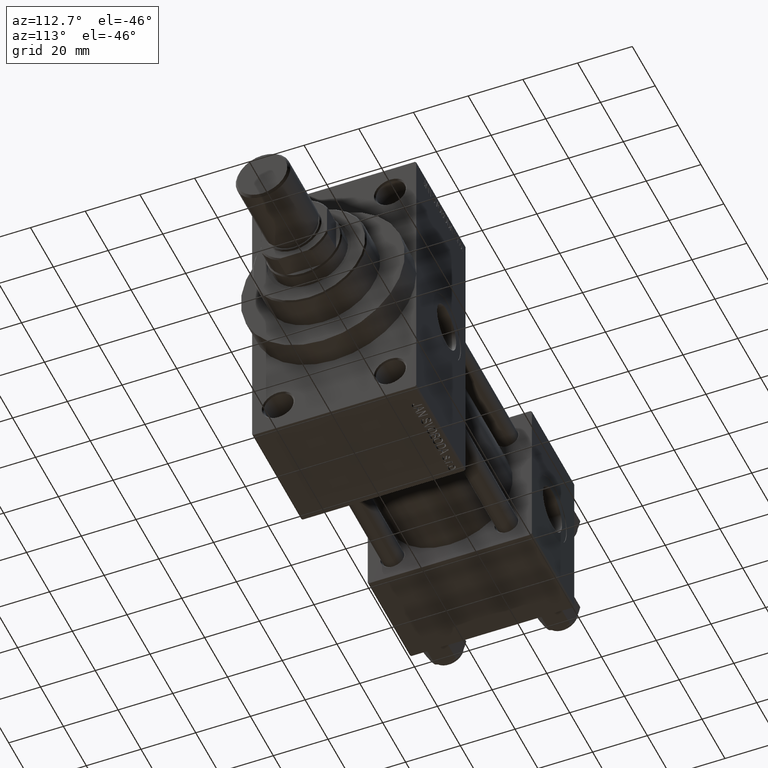
[diagram: clean part render]
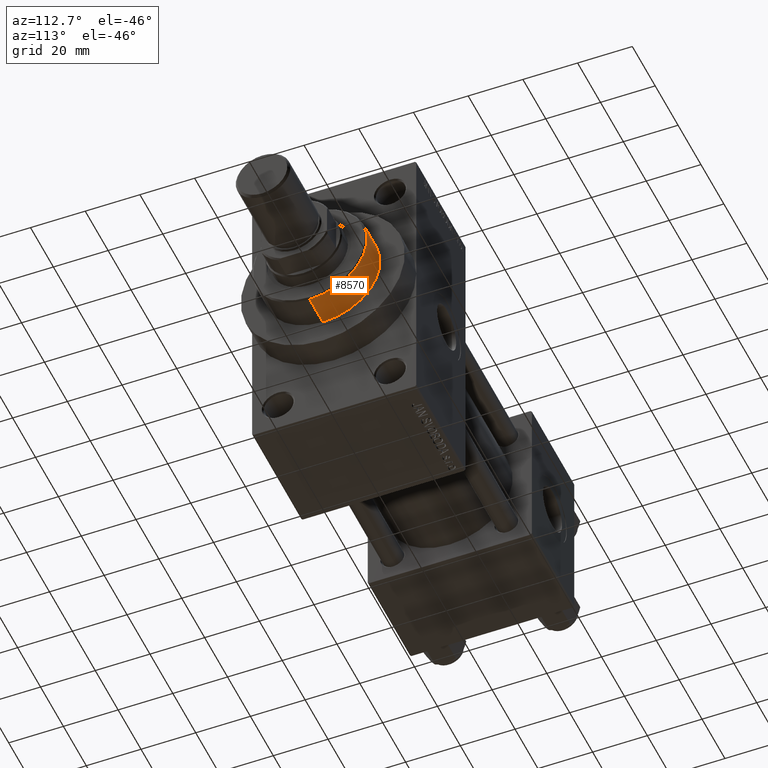
[diagram: same view with one face highlighted and labeled with its STEP entity id]
A machine part, auxiliary view. The second image highlights one B-rep face of the part: STEP entity #8570.
In plain terms, the highlighted cylindrical surface (partial cylindrical patch) has radius 21 mm, axis along (-1, 0, 0).
Its self-contained STEP definition (entity closure, byte-faithful):
#107 = VECTOR ( 'NONE', #15954, 1000.000000000000000 ) ;
#1240 = CARTESIAN_POINT ( 'NONE',  ( -21.00000000000000000, 0.000000000000000000, 55.26000000000000512 ) ) ;
#1531 = CARTESIAN_POINT ( 'NONE',  ( 21.00000000000000000, 2.571758278209441661E-15, 43.25999999999999801 ) ) ;
#2050 = VERTEX_POINT ( 'NONE', #3959 ) ;
#2889 = ORIENTED_EDGE ( 'NONE', *, *, #39249, .T. ) ;
#3959 = CARTESIAN_POINT ( 'NONE',  ( -21.00000000000000000, 0.000000000000000000, 43.25999999999999801 ) ) ;
#5582 = CARTESIAN_POINT ( 'NONE',  ( 21.00000000000000000, 2.571758278209441661E-15, 54.75999999999999091 ) ) ;
#8570 = ADVANCED_FACE ( 'NONE', ( #8849 ), #41181, .T. ) ;
#8849 = FACE_OUTER_BOUND ( 'NONE', #27400, .T. ) ;
#9719 = DIRECTION ( 'NONE',  ( 0.000000000000000000, 0.000000000000000000, -1.000000000000000000 ) ) ;
#10183 = DIRECTION ( 'NONE',  ( 1.000000000000000000, 0.000000000000000000, 0.000000000000000000 ) ) ;
#10817 = ORIENTED_EDGE ( 'NONE', *, *, #21888, .T. ) ;
#15954 = DIRECTION ( 'NONE',  ( -0.000000000000000000, -0.000000000000000000, -1.000000000000000000 ) ) ;
#16540 = CARTESIAN_POINT ( 'NONE',  ( 0.000000000000000000, 0.000000000000000000, 43.25999999999999801 ) ) ;
#19463 = CARTESIAN_POINT ( 'NONE',  ( 0.000000000000000000, 0.000000000000000000, 55.26000000000000512 ) ) ;
#21888 = EDGE_CURVE ( 'NONE', #2050, #33977, #22938, .T. ) ;
#21938 = ORIENTED_EDGE ( 'NONE', *, *, #31263, .T. ) ;
#22938 = CIRCLE ( 'NONE', #31415, 21.00000000000000000 ) ;
#23124 = ORIENTED_EDGE ( 'NONE', *, *, #41132, .F. ) ;
#24510 = DIRECTION ( 'NONE',  ( 1.000000000000000000, 0.000000000000000000, 0.000000000000000000 ) ) ;
#27400 = EDGE_LOOP ( 'NONE', ( #23124, #21938, #2889, #10817 ) ) ;
#30813 = CIRCLE ( 'NONE', #31569, 21.00000000000000000 ) ;
#30936 = CARTESIAN_POINT ( 'NONE',  ( 21.00000000000000000, 2.571758278209441661E-15, 55.26000000000000512 ) ) ;
#31036 = DIRECTION ( 'NONE',  ( -1.000000000000000000, 0.000000000000000000, 0.000000000000000000 ) ) ;
#31263 = EDGE_CURVE ( 'NONE', #38304, #43821, #30813, .T. ) ;
#31415 = AXIS2_PLACEMENT_3D ( 'NONE', #16540, #42121, #24510 ) ;
#31569 = AXIS2_PLACEMENT_3D ( 'NONE', #42763, #9719, #10183 ) ;
#31771 = VECTOR ( 'NONE', #45651, 1000.000000000000000 ) ;
#33977 = VERTEX_POINT ( 'NONE', #1531 ) ;
#34303 = LINE ( 'NONE', #1240, #107 ) ;
#35721 = CARTESIAN_POINT ( 'NONE',  ( -21.00000000000000000, 0.000000000000000000, 54.75999999999999091 ) ) ;
#38278 = DIRECTION ( 'NONE',  ( -0.000000000000000000, -0.000000000000000000, -1.000000000000000000 ) ) ;
#38304 = VERTEX_POINT ( 'NONE', #5582 ) ;
#39249 = EDGE_CURVE ( 'NONE', #43821, #2050, #34303, .T. ) ;
#41132 = EDGE_CURVE ( 'NONE', #38304, #33977, #46362, .T. ) ;
#41181 = CYLINDRICAL_SURFACE ( 'NONE', #42621, 21.00000000000000000 ) ;
#42121 = DIRECTION ( 'NONE',  ( 0.000000000000000000, 0.000000000000000000, 1.000000000000000000 ) ) ;
#42621 = AXIS2_PLACEMENT_3D ( 'NONE', #19463, #38278, #31036 ) ;
#42763 = CARTESIAN_POINT ( 'NONE',  ( 0.000000000000000000, 0.000000000000000000, 54.75999999999999091 ) ) ;
#43821 = VERTEX_POINT ( 'NONE', #35721 ) ;
#45651 = DIRECTION ( 'NONE',  ( -0.000000000000000000, -0.000000000000000000, -1.000000000000000000 ) ) ;
#46362 = LINE ( 'NONE', #30936, #31771 ) ;